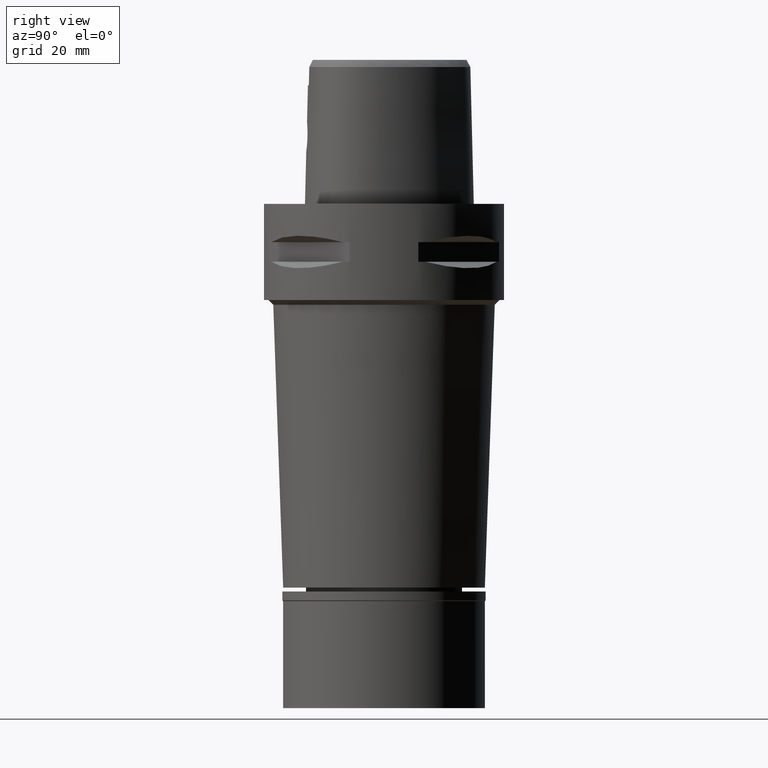
[diagram: clean part render]
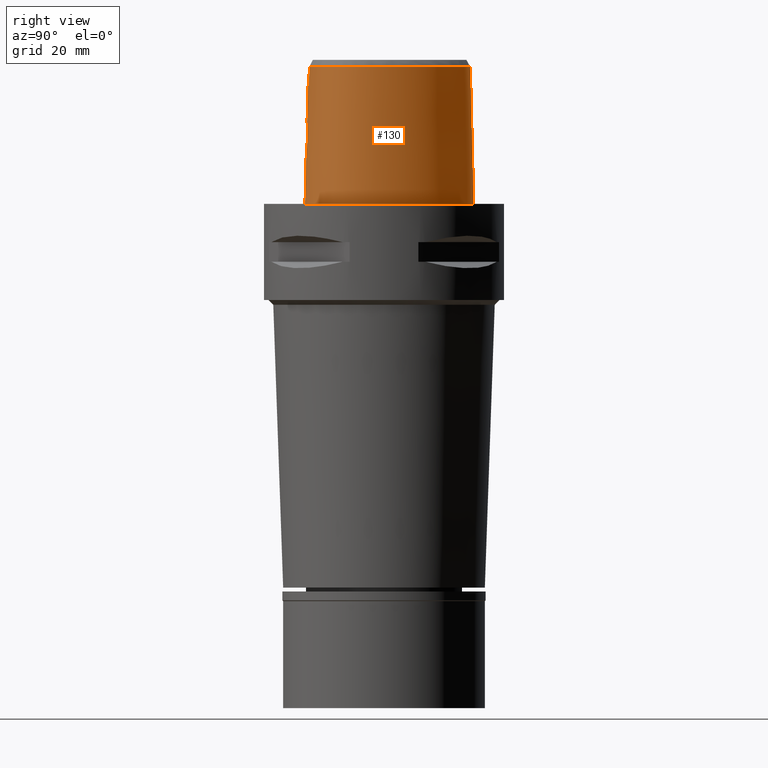
[diagram: same view with one face highlighted and labeled with its STEP entity id]
A machine part, right view. The second image highlights one B-rep face of the part: STEP entity #130.
In plain terms, the highlighted face is a freeform B-spline surface patch.
Its self-contained STEP definition (entity closure, byte-faithful):
#6 = VERTEX_POINT ( 'NONE', #270 ) ;
#11 = CARTESIAN_POINT ( 'NONE',  ( -0.5443412186381000328, 18.19851704362000078, 19.20396169952999799 ) ) ;
#12 = EDGE_CURVE ( 'NONE', #2570, #1781, #4143, .T. ) ;
#15 = CARTESIAN_POINT ( 'NONE',  ( -1.079551361447999902, -16.20136643792000086, 9.316773497791999148 ) ) ;
#49 = CARTESIAN_POINT ( 'NONE',  ( 2.030224829794000080E-07, -15.83752876601000281, 24.70000006102999990 ) ) ;
#54 = CARTESIAN_POINT ( 'NONE',  ( 7.976721801725998873, 15.84201698622999999, -0.5704147039463999258 ) ) ;
#77 = CARTESIAN_POINT ( 'NONE',  ( 0.3842297570381691396, -16.17878268541348064, 10.96777226348872958 ) ) ;
#116 = ORIENTED_EDGE ( 'NONE', *, *, #2062, .F. ) ;
#130 = ADVANCED_FACE ( 'NONE', ( #3039 ), #3271, .T. ) ;
#136 = VECTOR ( 'NONE', #3525, 1000.000000000000227 ) ;
#157 = CARTESIAN_POINT ( 'NONE',  ( -2.152758532514000202E-12, -16.18126839358999902, 10.94999999999999929 ) ) ;
#199 = CARTESIAN_POINT ( 'NONE',  ( 2.417729193041619151, -16.04731727844056266, 12.13798983179893654 ) ) ;
#205 = CARTESIAN_POINT ( 'NONE',  ( 2.030224829794000080E-07, -15.83752876601000281, 24.70000006102999990 ) ) ;
#207 = CARTESIAN_POINT ( 'NONE',  ( 13.36241662740000002, -12.29868531782999952, 9.316773497791999148 ) ) ;
#211 = CARTESIAN_POINT ( 'NONE',  ( 16.51672828905733681, 3.703437514886214643, -1.744312156005825912E-06 ) ) ;
#226 = CARTESIAN_POINT ( 'NONE',  ( 1.805376232587378116, -16.10834772480010813, 11.53923680359976878 ) ) ;
#237 = CARTESIAN_POINT ( 'NONE',  ( 15.05961623169000063, -9.784614130622999895, 29.09114990127000056 ) ) ;
#253 = CARTESIAN_POINT ( 'NONE',  ( 2.141618861871738222, -16.07744231414373814, 11.82835874812550792 ) ) ;
#265 = CARTESIAN_POINT ( 'NONE',  ( 17.08644817322000264, -5.387673897032000170, 19.20396169952999799 ) ) ;
#270 = CARTESIAN_POINT ( 'NONE',  ( -3.094719018046000398E-11, 17.98202997909999823, 28.52071728569000086 ) ) ;
#279 = CARTESIAN_POINT ( 'NONE',  ( 2.638828814086501495, -16.01860464026841413, 12.46732066277610507 ) ) ;
#290 = CARTESIAN_POINT ( 'NONE',  ( 17.22987929833000109, -3.272349403466999984, 19.20396169952999799 ) ) ;
#295 = CARTESIAN_POINT ( 'NONE',  ( 11.46563511374381328, 12.45218752828597530, -1.744312156005825912E-06 ) ) ;
#307 = CARTESIAN_POINT ( 'NONE',  ( 3.050149896193000476, -15.93316336324772386, 14.18941404704232312 ) ) ;
#316 = ORIENTED_EDGE ( 'NONE', *, *, #1524, .T. ) ;
#317 = CARTESIAN_POINT ( 'NONE',  ( 1.286803361170999915, -15.75925581158000099, 29.09114990127000056 ) ) ;
#362 = CARTESIAN_POINT ( 'NONE',  ( 4.522582257845999543, 17.29581182443000031, 19.20396169952999799 ) ) ;
#374 = CARTESIAN_POINT ( 'NONE',  ( 1.737183591012293693, -15.98828192606207743, 16.50739953107601821 ) ) ;
#392 = CARTESIAN_POINT ( 'NONE',  ( -3.094719018046000398E-11, 17.98202997909999823, 28.52071728569000086 ) ) ;
#420 = CARTESIAN_POINT ( 'NONE',  ( 1.531589067142498983, -15.99732691922906724, 16.63945844436470622 ) ) ;
#428 = CARTESIAN_POINT ( 'NONE',  ( 0.4511781748773999734, 17.98656543598000113, 29.09114990127000056 ) ) ;
#559 = CARTESIAN_POINT ( 'NONE',  ( 16.20602475747607940, -9.356552756219091549, -1.744312156005825912E-06 ) ) ;
#569 = CARTESIAN_POINT ( 'NONE',  ( 2.836520581861567081, -15.93251973351802242, 15.12113420123081298 ) ) ;
#578 = CARTESIAN_POINT ( 'NONE',  ( 13.50690096184690425, -12.48264651881767051, -1.744312156005825912E-06 ) ) ;
#590 = CARTESIAN_POINT ( 'NONE',  ( 3.044506884776515321, -15.94333381584075582, 13.81108558313461110 ) ) ;
#599 = CARTESIAN_POINT ( 'NONE',  ( 13.20908634200000087, -12.10346122271000091, 19.20396169952999799 ) ) ;
#603 = CARTESIAN_POINT ( 'NONE',  ( 0.6801907889749732039, 18.69500004360072154, -1.744312156005825912E-06 ) ) ;
#618 = CARTESIAN_POINT ( 'NONE',  ( 2.114644142901446422, -16.08015782783983383, 11.80200641014713270 ) ) ;
#628 = CARTESIAN_POINT ( 'NONE',  ( 15.25987605237999922, -9.930205345215998847, 19.20396169952999799 ) ) ;
#633 = B_SPLINE_CURVE_WITH_KNOTS ( 'NONE', 3,
 ( #49, #4168, #4429, #1788 ),
 .UNSPECIFIED., .F., .F.,
 ( 4, 4 ),
 ( 0.0000000000000000000, 1.000000000000000000 ),
 .UNSPECIFIED. ) ;
#645 = CARTESIAN_POINT ( 'NONE',  ( 2.899217746531571382, -15.97873758491098783, 13.02871175161756589 ) ) ;
#655 = CARTESIAN_POINT ( 'NONE',  ( 11.57144729095000102, -13.50085883975000023, 9.316773497791999148 ) ) ;
#658 = CARTESIAN_POINT ( 'NONE',  ( 17.71143739935840600, -3.269218749715581129, -1.744312156005825912E-06 ) ) ;
#668 = CARTESIAN_POINT ( 'NONE',  ( 2.681016418395044454, -15.93974068711152547, 15.46783011061541302 ) ) ;
#678 = CARTESIAN_POINT ( 'NONE',  ( 16.70311415928999921, -7.028822871693999552, 19.20396169952999799 ) ) ;
#710 = CARTESIAN_POINT ( 'NONE',  ( 16.53021708589000127, 3.708305584540000144, -0.5704147039463999258 ) ) ;
#719 = CARTESIAN_POINT ( 'NONE',  ( 1.893775678554745490, 17.84807068955549525, 28.52071728562184205 ) ) ;
#735 = CARTESIAN_POINT ( 'NONE',  ( 16.85489147434659074, -5.354527548487455491, 28.52071728562184205 ) ) ;
#756 = CARTESIAN_POINT ( 'NONE',  ( 15.84228676733617114, 3.460033425848965560, 28.52071728562184205 ) ) ;
#774 = CARTESIAN_POINT ( 'NONE',  ( 4.628819261275999963, 17.52182795194999798, 9.316773497791999148 ) ) ;
#781 = CARTESIAN_POINT ( 'NONE',  ( 2.030224829794000080E-07, -15.83752876601000281, 24.70000006102999990 ) ) ;
#786 = CARTESIAN_POINT ( 'NONE',  ( 0.0000000000000000000, -16.02877864023999877, 17.05000000000000071 ) ) ;
#796 = CARTESIAN_POINT ( 'NONE',  ( -0.5743166383234999950, 18.69191973845999755, -0.5704147039463999258 ) ) ;
#837 = CARTESIAN_POINT ( 'NONE',  ( 0.9209982704662519337, -16.16262558226604540, 11.09193420934339436 ) ) ;
#932 = CARTESIAN_POINT ( 'NONE',  ( 2.907704111751937770, -15.93016185020670505, 14.92213459652817775 ) ) ;
#957 = CARTESIAN_POINT ( 'NONE',  ( 1.078575942914911989, -16.15565394761469875, 11.14687127074764916 ) ) ;
#964 = CARTESIAN_POINT ( 'NONE',  ( 13.05575605661000083, -11.90823712759999964, 29.09114990127000056 ) ) ;
#978 = CARTESIAN_POINT ( 'NONE',  ( 2.130834279645530849, -16.07853149005607563, 11.81777582520600411 ) ) ;
#988 = CARTESIAN_POINT ( 'NONE',  ( 5.053620743890999911, -16.16974068498999983, -0.5704147039463999258 ) ) ;
#993 = CARTESIAN_POINT ( 'NONE',  ( 7.243243713393999948E-11, 18.69499999997999851, 1.586138627847999922E-13 ) ) ;
#1005 = CARTESIAN_POINT ( 'NONE',  ( 2.320231428406521079, -15.95909571851455588, 15.98050410814317424 ) ) ;
#1014 = CARTESIAN_POINT ( 'NONE',  ( 11.32630894423000001, -13.06981816289999898, 29.09114990127000056 ) ) ;
#1032 = CARTESIAN_POINT ( 'NONE',  ( 2.459696765391574225, -15.95161770387217004, 15.80683248070965163 ) ) ;
#1042 = CARTESIAN_POINT ( 'NONE',  ( 8.697311531141000529, -14.35163113926999934, 29.09114990127000056 ) ) ;
#1067 = CARTESIAN_POINT ( 'NONE',  ( 16.22974812217000107, -8.250337651438000464, 19.20396169952999799 ) ) ;
#1071 = CARTESIAN_POINT ( 'NONE',  ( 3.235096591086000117, -15.64751801257999908, 24.70000006080999810 ) ) ;
#1087 = ORIENTED_EDGE ( 'NONE', *, *, #4488, .T. ) ;
#1112 = CARTESIAN_POINT ( 'NONE',  ( 0.4640361003791000361, 18.23425880941999822, 19.20396169952999799 ) ) ;
#1292 = CARTESIAN_POINT ( 'NONE',  ( 2.824468722466921378, -15.93300016794371388, 15.15105085638172078 ) ) ;
#1298 = VECTOR ( 'NONE', #3899, 1000.000000000000114 ) ;
#1318 = CARTESIAN_POINT ( 'NONE',  ( 2.852909278454516251, -15.93189406616819781, 15.07915126970514486 ) ) ;
#1329 = CARTESIAN_POINT ( 'NONE',  ( 1.321318946931000049, -16.50155084632999802, -0.5704147039463999258 ) ) ;
#1334 = CARTESIAN_POINT ( 'NONE',  ( 2.040572366645008184, 18.55015629294168988, -1.744312156005825912E-06 ) ) ;
#1345 = CARTESIAN_POINT ( 'NONE',  ( 3.048883421515427461, -15.94046337244652278, 13.90502257973829181 ) ) ;
#1354 = CARTESIAN_POINT ( 'NONE',  ( 17.57791639733000011, -5.458025465929000397, -0.5704147039463999258 ) ) ;
#1358 = CARTESIAN_POINT ( 'NONE',  ( 14.78833383575404170, -11.28232913167233242, -1.744312156005825912E-06 ) ) ;
#1369 = CARTESIAN_POINT ( 'NONE',  ( 2.806282367902104280, -15.99380854387472084, 12.80500890572250405 ) ) ;
#1375 = ORIENTED_EDGE ( 'NONE', *, *, #12, .F. ) ;
#1379 = CARTESIAN_POINT ( 'NONE',  ( 15.46013587307000137, -10.07579655980999966, 9.316773497791999148 ) ) ;
#1395 = CARTESIAN_POINT ( 'NONE',  ( 2.709953204667776117, -16.00846021379442874, 12.59958595632848066 ) ) ;
#1405 = CARTESIAN_POINT ( 'NONE',  ( 8.951632340989998937, -15.05250171786000024, -0.5704147039463999258 ) ) ;
#1414 = CARTESIAN_POINT ( 'NONE',  ( 15.07117004567579244, -9.793013887526695882, 28.52071728562184205 ) ) ;
#1430 = CARTESIAN_POINT ( 'NONE',  ( 16.00353252256000047, -8.149703168763000605, 29.09114990127000056 ) ) ;
#1434 = CARTESIAN_POINT ( 'NONE',  ( 3.168920890822999770, -15.55911073834000113, 28.52071374672999582 ) ) ;
#1437 = CARTESIAN_POINT ( 'NONE',  ( 16.99625257117529742, -3.273868232427070257, 28.52071728562184205 ) ) ;
#1457 = CARTESIAN_POINT ( 'NONE',  ( -0.5593289284807999584, 18.44521839104000094, 9.316773497791999148 ) ) ;
#1487 = CARTESIAN_POINT ( 'NONE',  ( 11.33338046474027649, -13.08225241901684655, 28.52071728562184205 ) ) ;
#1516 = CARTESIAN_POINT ( 'NONE',  ( 1.217867162102865608, -16.00861105600192857, 16.79681041045230216 ) ) ;
#1524 = EDGE_CURVE ( 'NONE', #3747, #4379, #2402, .T. ) ;
#1555 = CARTESIAN_POINT ( 'NONE',  ( 1.890839650941000150, 17.83402852859999754, 29.09114990127000056 ) ) ;
#1562 = CARTESIAN_POINT ( 'NONE',  ( 2.169052010910560657, -15.77399788591196028, 24.70000016056456005 ) ) ;
#1651 = CARTESIAN_POINT ( 'NONE',  ( -3.094719018046000398E-11, 17.98202997909999823, 28.52071728569000086 ) ) ;
#1660 = EDGE_CURVE ( 'NONE', #4774, #4041, #633, .T. ) ;
#1698 = CARTESIAN_POINT ( 'NONE',  ( 1.466707760578695563, -16.13401281180648184, 11.31839107165520630 ) ) ;
#1709 = CARTESIAN_POINT ( 'NONE',  ( 14.39249255236000025, 8.309508948786000104, -0.5704147039463999258 ) ) ;
#1725 = CARTESIAN_POINT ( 'NONE',  ( 2.290593162243965697, -16.06186194956454116, 11.98364703425937172 ) ) ;
#1735 = CARTESIAN_POINT ( 'NONE',  ( 4.922186775354999710, -15.43572506549999979, 29.09114990127000056 ) ) ;
#1749 = CARTESIAN_POINT ( 'NONE',  ( 1.158353828547319386, -16.15167258786864579, 11.17852165137631992 ) ) ;
#1761 = CARTESIAN_POINT ( 'NONE',  ( 16.84071406117000436, -5.352498112583000456, 29.09114990127000056 ) ) ;
#1765 = CARTESIAN_POINT ( 'NONE',  ( 3.213444788215948034, -15.61774735051721308, 25.97357128944999971 ) ) ;
#1775 = CARTESIAN_POINT ( 'NONE',  ( 2.478737183293503676, -16.03986208745135400, 12.22013516387799825 ) ) ;
#1781 = VERTEX_POINT ( 'NONE', #3447 ) ;
#1785 = CARTESIAN_POINT ( 'NONE',  ( 17.26695536852000146, -0.2694874702483000539, 9.316773497791999148 ) ) ;
#1788 = CARTESIAN_POINT ( 'NONE',  ( 0.0000000000000000000, -16.02877864023999877, 17.05000000000000071 ) ) ;
#1804 = CARTESIAN_POINT ( 'NONE',  ( 2.975249651912822646, -15.92914271478721666, 14.67846616982686925 ) ) ;
#1814 = CARTESIAN_POINT ( 'NONE',  ( 1.309813751677999960, -16.25411916807999901, 9.316773497791999148 ) ) ;
#1825 = CARTESIAN_POINT ( 'NONE',  ( 8.702202469522260841, -14.36510984286175052, 28.52071728562184205 ) ) ;
#1840 = CARTESIAN_POINT ( 'NONE',  ( 7.822764751713000564, 15.64591005822999925, 9.316773497791999148 ) ) ;
#1851 = B_SPLINE_CURVE_WITH_KNOTS ( 'NONE', 3,
 ( #2795, #2457, #3185, #3268, #4032, #578, #1358, #2161, #559, #3585, #2064, #3982, #658, #2085, #211, #3657, #295, #4295, #4374, #1334, #603, #993 ),
 .UNSPECIFIED., .F., .F.,
 ( 4, 1, 1, 1, 1, 1, 1, 1, 1, 1, 1, 1, 1, 1, 1, 1, 1, 1, 1, 4 ),
 ( 0.0000000000000000000, 0.08333333333350000094, 0.1666666666668000230, 0.2083333333333000081, 0.2499999999998999967, 0.2916666666666000163, 0.3124999999998999689, 0.3333333333331000015, 0.3541666666665000407, 0.3749999999997999933, 0.4166666666664000096, 0.4583333333330000259, 0.4999999999995999866, 0.5833333333328000192, 0.6666666666660999718, 0.7499999999993000044, 0.8333333333325000369, 0.9166666666657000695, 0.9583333333322999747, 1.000000000000000000 ),
 .UNSPECIFIED. ) ;
#1885 = CARTESIAN_POINT ( 'NONE',  ( 1.992618745709000105, 18.32080815622000003, 9.316773497791999148 ) ) ;
#1931 = CARTESIAN_POINT ( 'NONE',  ( 4.416345254416000010, 17.06979569690999909, 29.09114990127000056 ) ) ;
#1954 = CARTESIAN_POINT ( 'NONE',  ( 0.1898211197373668446, -16.18126839358999902, 10.94999999999999751 ) ) ;
#2062 = EDGE_CURVE ( 'NONE', #6, #2580, #3917, .T. ) ;
#2064 = CARTESIAN_POINT ( 'NONE',  ( 17.16495055975975248, -7.165908215576941132, -1.744312156005825912E-06 ) ) ;
#2076 = CARTESIAN_POINT ( 'NONE',  ( 1.150837130458092217, -16.15205889506641412, 11.17544410961279056 ) ) ;
#2085 = CARTESIAN_POINT ( 'NONE',  ( 17.49754716624818229, -0.2285937423437257865, -1.744312156005825912E-06 ) ) ;
#2098 = ORIENTED_EDGE ( 'NONE', *, *, #2993, .T. ) ;
#2100 = CARTESIAN_POINT ( 'NONE',  ( 1.306758668661503142, -16.14399373876849353, 11.23972581488374622 ) ) ;
#2109 = CARTESIAN_POINT ( 'NONE',  ( 15.66039569375999818, -10.22138777439999835, -0.5704147039463999258 ) ) ;
#2124 = CARTESIAN_POINT ( 'NONE',  ( 2.821425036078518467, -15.93312409536605578, 15.15848376097718031 ) ) ;
#2134 = CARTESIAN_POINT ( 'NONE',  ( 16.21839714805999932, -9.363695959274000558, -0.5704147039463999258 ) ) ;
#2148 = CARTESIAN_POINT ( 'NONE',  ( 2.520317714005605225, -15.94834054842958793, 15.72060082174885132 ) ) ;
#2158 = CARTESIAN_POINT ( 'NONE',  ( 5.009809421045999578, -15.92506881183000367, 9.316773497791999148 ) ) ;
#2161 = CARTESIAN_POINT ( 'NONE',  ( 15.64884227789647220, -10.21298830693598703, -1.744312156005825912E-06 ) ) ;
#2174 = CARTESIAN_POINT ( 'NONE',  ( 2.180887052763814893, -15.96648089881372279, 16.13220278528723028 ) ) ;
#2184 = CARTESIAN_POINT ( 'NONE',  ( 17.33218228527999827, -5.422849681481000772, 9.316773497791999148 ) ) ;
#2202 = CARTESIAN_POINT ( 'NONE',  ( 1.354452607727719693, -16.00396228356807526, 16.73322745257438982 ) ) ;
#2212 = CARTESIAN_POINT ( 'NONE',  ( 11.69401646429999886, -13.71637917817999863, -0.5704147039463999258 ) ) ;
#2239 = CARTESIAN_POINT ( 'NONE',  ( 14.26907046692379666, -10.79012245165790773, 28.52071728562184205 ) ) ;
#2244 = CARTESIAN_POINT ( 'NONE',  ( 0.3724840145390407309, -16.02877864023999877, 17.04999999999999361 ) ) ;
#2257 = CARTESIAN_POINT ( 'NONE',  ( -1.089046662696999901, -16.44835921930999945, -0.5704147039463999258 ) ) ;
#2260 = CARTESIAN_POINT ( 'NONE',  ( 10.91764517733190054, 11.98972036053827317, 28.52071728562184205 ) ) ;
#2275 = CARTESIAN_POINT ( 'NONE',  ( 10.90668502824000008, 11.98047072149999970, 29.09114990127000056 ) ) ;
#2329 = CARTESIAN_POINT ( 'NONE',  ( 1.084489111476635514, -15.83754148653806659, 24.70000016056456005 ) ) ;
#2402 = LINE ( 'NONE', #4776, #1298 ) ;
#2447 = CARTESIAN_POINT ( 'NONE',  ( 1.719191830015878608, -16.11523926597523726, 11.47872671523162325 ) ) ;
#2457 = CARTESIAN_POINT ( 'NONE',  ( 1.683697725103081133, -16.45500004360071244, -1.744312156005826124E-06 ) ) ;
#2468 = CARTESIAN_POINT ( 'NONE',  ( 3.014162081768898105, -15.95399573205361854, 13.52323755265707206 ) ) ;
#2475 = CARTESIAN_POINT ( 'NONE',  ( 16.94089129437000096, -7.099401458173999480, 9.316773497791999148 ) ) ;
#2490 = CARTESIAN_POINT ( 'NONE',  ( 1.120763508486769089, -16.15358090583465867, 11.16333240776580382 ) ) ;
#2503 = CARTESIAN_POINT ( 'NONE',  ( 8.782085134423999406, -14.58525466546999994, 19.20396169952999799 ) ) ;
#2521 = CARTESIAN_POINT ( 'NONE',  ( 2.744096643845215233, -16.00346064512505961, 12.66698413764604325 ) ) ;
#2531 = CARTESIAN_POINT ( 'NONE',  ( 16.98194841734999727, -3.273961225054000224, 29.09114990127000056 ) ) ;
#2545 = CARTESIAN_POINT ( 'NONE',  ( 2.196663950529426312, -15.96564993910013364, 16.11602529263612027 ) ) ;
#2556 = CARTESIAN_POINT ( 'NONE',  ( 14.61870767401999949, -11.12154149494999977, 9.316773497791999148 ) ) ;
#2564 = CARTESIAN_POINT ( 'NONE',  ( 0.6295828025428342745, 17.98202997637813638, 28.52071728562184205 ) ) ;
#2570 = VERTEX_POINT ( 'NONE', #4759 ) ;
#2580 = VERTEX_POINT ( 'NONE', #3591 ) ;
#2582 = CARTESIAN_POINT ( 'NONE',  ( 0.0000000000000000000, -16.02877864023999877, 17.05000000000000071 ) ) ;
#2585 = CARTESIAN_POINT ( 'NONE',  ( -0.7138086207778999714, -15.96808629085999875, 19.20396169952999799 ) ) ;
#2610 = CARTESIAN_POINT ( 'NONE',  ( 0.4768940258807999877, 18.48195218285000152, 9.316773497791999148 ) ) ;
#2614 = ORIENTED_EDGE ( 'NONE', *, *, #4745, .T. ) ;
#2627 = CARTESIAN_POINT ( 'NONE',  ( 7.514850651687999594, 15.25369620224000045, 29.09114990127000056 ) ) ;
#2648 = CARTESIAN_POINT ( 'NONE',  ( -0.3829342213886000046, 18.70352949268999865, -0.5704147039463999258 ) ) ;
#2656 = CARTESIAN_POINT ( 'NONE',  ( 5.902447799197189759, -15.16907841529151568, 28.52071728562184560 ) ) ;
#2695 = CARTESIAN_POINT ( 'NONE',  ( -0.3730031645486999725, 18.45651544036000047, 9.316773497791999148 ) ) ;
#2713 = CARTESIAN_POINT ( 'NONE',  ( 0.6770584128772033639, -16.17132556088388995, 11.02443681068311676 ) ) ;
#2795 = CARTESIAN_POINT ( 'NONE',  ( -1.728596458601000357E-11, -16.45500000000000185, 1.597240858093999809E-13 ) ) ;
#2809 = CARTESIAN_POINT ( 'NONE',  ( 2.164021906619612690, -15.96736812113674198, 16.14931344321803408 ) ) ;
#2834 = CARTESIAN_POINT ( 'NONE',  ( 1.898958778535287051, -15.98067541706731731, 16.38724889510307392 ) ) ;
#2843 = CARTESIAN_POINT ( 'NONE',  ( 11.28662493285999879, 12.30111480623000020, 9.316773497791999148 ) ) ;
#2856 = CARTESIAN_POINT ( 'NONE',  ( 2.883981873338816282, -15.93080840504316598, 14.99485968243841150 ) ) ;
#2864 = CARTESIAN_POINT ( 'NONE',  ( 15.78948629622000155, -9.116064162785999514, 19.20396169952999799 ) ) ;
#2884 = CARTESIAN_POINT ( 'NONE',  ( 3.049961347112721377, -15.93921296701097923, 13.94964838113523165 ) ) ;
#2894 = CARTESIAN_POINT ( 'NONE',  ( 8.866858737707000060, -14.81887819166000142, 9.316773497791999148 ) ) ;
#2912 = CARTESIAN_POINT ( 'NONE',  ( 2.232748692361829157, -15.96374470980125082, 16.07819212816551513 ) ) ;
#2924 = CARTESIAN_POINT ( 'NONE',  ( 13.96223222989999968, 8.061115390864999952, 19.20396169952999799 ) ) ;
#2949 = CARTESIAN_POINT ( 'NONE',  ( 17.51166498559999951, -0.2260900528419000077, -0.5704147039463999258 ) ) ;
#2981 = CARTESIAN_POINT ( 'NONE',  ( 16.01658383235130856, -8.155509186612100336, 28.52071728562184205 ) ) ;
#2992 = CARTESIAN_POINT ( 'NONE',  ( 11.09665498054999944, 12.14079276386000039, 19.20396169952999799 ) ) ;
#2993 = EDGE_CURVE ( 'NONE', #4379, #2580, #1851, .T. ) ;
#2999 = CARTESIAN_POINT ( 'NONE',  ( 3.168920890822999770, -15.55911073834000113, 28.52071374672999582 ) ) ;
#3012 = CARTESIAN_POINT ( 'NONE',  ( 1.941729198325000016, 18.07741834241000234, 19.20396169952999799 ) ) ;
#3015 = CARTESIAN_POINT ( 'NONE',  ( -0.7264497208332001410, -16.46229666010999892, -0.5704147039463999258 ) ) ;
#3039 = FACE_OUTER_BOUND ( 'NONE', #4802, .T. ) ;
#3058 = CARTESIAN_POINT ( 'NONE',  ( -0.3630721077087999960, 18.20950138802999874, 19.20396169952999799 ) ) ;
#3151 = CARTESIAN_POINT ( 'NONE',  ( -2.152758532514000202E-12, -16.18126839358999902, 10.94999999999999929 ) ) ;
#3185 = CARTESIAN_POINT ( 'NONE',  ( 5.051093175302274751, -16.15562504316535808, -1.744312156005825912E-06 ) ) ;
#3202 = CARTESIAN_POINT ( 'NONE',  ( 2.957688824804170391, -15.96752846870872666, 13.22897551199208266 ) ) ;
#3212 = CARTESIAN_POINT ( 'NONE',  ( 17.72574106029000163, -3.269125760292999949, -0.5704147039463999258 ) ) ;
#3231 = CARTESIAN_POINT ( 'NONE',  ( 2.076784380858851531, -16.08390063340872445, 11.76594178764124621 ) ) ;
#3240 = CARTESIAN_POINT ( 'NONE',  ( 16.45596372177000077, -8.350972134114000411, 9.316773497791999148 ) ) ;
#3257 = CARTESIAN_POINT ( 'NONE',  ( 2.796681338616599621, -15.99533385695102439, 12.78273984513034378 ) ) ;
#3265 = CARTESIAN_POINT ( 'NONE',  ( -0.7074880707502999577, -15.72098110624000178, 29.09114990127000056 ) ) ;
#3268 = CARTESIAN_POINT ( 'NONE',  ( 8.946741571141094695, -15.03902347871851930, -1.744312156005825912E-06 ) ) ;
#3271 = B_SPLINE_SURFACE_WITH_KNOTS ( 'NONE', 3, 3, ( 
 ( #2257, #15, #3756, #4551 ),
 ( #3015, #4525, #2585, #3265 ),
 ( #1329, #1814, #3607, #317 ),
 ( #988, #2158, #3323, #1735 ),
 ( #1405, #2894, #2503, #1042 ),
 ( #2212, #655, #4831, #1014 ),
 ( #3980, #207, #599, #964 ),
 ( #4370, #2556, #4749, #4006 ),
 ( #2109, #1379, #628, #237 ),
 ( #2134, #4399, #2864, #4775 ),
 ( #4053, #3240, #1067, #1430 ),
 ( #3631, #2475, #678, #3653 ),
 ( #1354, #2184, #265, #1761 ),
 ( #3212, #4029, #290, #2531 ),
 ( #2949, #1785, #3290, #4085 ),
 ( #710, #4724, #4455, #4344 ),
 ( #1709, #4805, #2924, #4428 ),
 ( #3680, #2843, #2992, #2275 ),
 ( #54, #1840, #4500, #2627 ),
 ( #4173, #774, #362, #1931 ),
 ( #3730, #1885, #3012, #1555 ),
 ( #4150, #2610, #1112, #428 ),
 ( #2648, #2695, #3058, #4194 ),
 ( #796, #1457, #11, #4128 ) ),
 .UNSPECIFIED., .F., .F., .F.,
 ( 4, 1, 1, 1, 1, 1, 1, 1, 1, 1, 1, 1, 1, 1, 1, 1, 1, 1, 1, 1, 1, 4 ),
 ( 4, 4 ),
 ( -0.01796851319148999940, 0.0000000000000000000, 0.08333333333350000094, 0.1666666666668000230, 0.2083333333333000081, 0.2499999999998999967, 0.2916666666666000163, 0.3124999999998999689, 0.3333333333331000015, 0.3541666666665000407, 0.3749999999997999933, 0.4166666666664000096, 0.4583333333330000259, 0.4999999999995999866, 0.5833333333328000192, 0.6666666666660999718, 0.7499999999993000044, 0.8333333333325000369, 0.9166666666657000695, 0.9583333333322999747, 1.000000000000000000, 1.011711214084999977 ),
 ( 8.885596043673000739E-10, 0.9999999546833999720 ),
 .UNSPECIFIED. ) ;
#3281 = CARTESIAN_POINT ( 'NONE',  ( 2.262444582314413033, -15.96216938760132464, 16.04565077979857790 ) ) ;
#3290 = CARTESIAN_POINT ( 'NONE',  ( 17.02224575144000340, -0.3128848876547999924, 19.20396169952999799 ) ) ;
#3299 = CARTESIAN_POINT ( 'NONE',  ( 7.523733068098453103, 15.26501041873948239, 28.52071728562184205 ) ) ;
#3310 = CARTESIAN_POINT ( 'NONE',  ( 2.147962331140050196, -16.07679769526338021, 11.83463701146478719 ) ) ;
#3323 = CARTESIAN_POINT ( 'NONE',  ( 4.965998098199999156, -15.68039693865999951, 19.20396169952999799 ) ) ;
#3327 = CARTESIAN_POINT ( 'NONE',  ( 3.191384142201736829, -15.58827398948734633, 27.24714251809000132 ) ) ;
#3337 = CARTESIAN_POINT ( 'NONE',  ( 1.399412083726095490, -16.00233608542867714, 16.71046994217811843 ) ) ;
#3400 = CARTESIAN_POINT ( 'NONE',  ( 16.47905536661744463, -6.962316254603313936, 28.52071728562184205 ) ) ;
#3447 = CARTESIAN_POINT ( 'NONE',  ( 3.168920890822999770, -15.55911073834000113, 28.52071374672999582 ) ) ;
#3525 = DIRECTION ( 'NONE',  ( 3.623588411843884826E-12, 0.02499051285796925065, -0.9996876883642689116 ) ) ;
#3571 = CARTESIAN_POINT ( 'NONE',  ( 1.138812104615412935, -16.15267061231297774, 11.17057442770736664 ) ) ;
#3585 = CARTESIAN_POINT ( 'NONE',  ( 16.66912846131180004, -8.445800799004141268, -1.744312156005825912E-06 ) ) ;
#3591 = CARTESIAN_POINT ( 'NONE',  ( 7.243243713393999948E-11, 18.69499999997999851, 1.586138627847999922E-13 ) ) ;
#3599 = CARTESIAN_POINT ( 'NONE',  ( 2.223227574825688890, -16.06911398227925147, 11.90960399256264957 ) ) ;
#3607 = CARTESIAN_POINT ( 'NONE',  ( 1.298308556424000004, -16.00668748983000000, 19.20396169952999799 ) ) ;
#3622 = CARTESIAN_POINT ( 'NONE',  ( 2.829313881745447734, -15.93280562740808470, 15.13908937170597291 ) ) ;
#3631 = CARTESIAN_POINT ( 'NONE',  ( 17.17866842945000272, -7.169980044653000206, -0.5704147039463999258 ) ) ;
#3644 = CARTESIAN_POINT ( 'NONE',  ( 0.9939297242885032357, -16.15959612542590662, 11.11569146158375077 ) ) ;
#3653 = CARTESIAN_POINT ( 'NONE',  ( 16.46533702422000189, -6.958244285215000602, 29.09114990127000056 ) ) ;
#3657 = CARTESIAN_POINT ( 'NONE',  ( 14.38008123485800027, 8.302343771910768666, -1.744312156005825912E-06 ) ) ;
#3670 = CARTESIAN_POINT ( 'NONE',  ( 2.170299400654050359, -15.96703807926083307, 16.14297866672072601 ) ) ;
#3680 = CARTESIAN_POINT ( 'NONE',  ( 11.47659488516999993, 12.46143684859999823, -0.5704147039463999258 ) ) ;
#3729 = B_SPLINE_CURVE_WITH_KNOTS ( 'NONE', 3,
 ( #3151, #1954, #77, #2713, #4211, #837, #3644, #957, #2490, #3571, #2076, #1749, #2100, #1698, #2447, #226, #3996, #3970, #4360, #3231, #618, #978, #253, #3310, #3599, #1725, #199, #1775, #4021, #279, #1395, #2521, #4765, #3257, #1369, #645, #3202, #2468, #4740, #3946, #590, #1345, #2884, #307, #4044, #1804, #4794, #932, #2856, #1318, #569, #3622, #1292, #2124, #4419, #668, #2148, #1032, #4391, #1005, #3281, #2912, #2545, #2174, #3670, #2809, #4713, #4310, #2834, #4335, #4864, #374, #3742, #420, #3337, #2202, #3764, #1516, #4098, #2244, #786 ),
 .UNSPECIFIED., .F., .F.,
 ( 4, 2, 2, 1, 1, 1, 2, 2, 2, 2, 2, 1, 1, 2, 2, 2, 2, 2, 1, 2, 2, 2, 2, 2, 2, 2, 2, 1, 1, 1, 2, 2, 2, 2, 2, 1, 1, 2, 2, 2, 2, 2, 2, 2, 2, 4 ),
 ( 0.0000000000000000000, 0.06249999999999365785, 0.09374999999999047984, 0.1093749999999888700, 0.1171874999999880929, 0.1210937499999875655, 0.1230468749999872879, 0.1249999999999870243, 0.1874999999999834854, 0.2187499999999817368, 0.2343749999999807376, 0.2421874999999802935, 0.2460937499999800715, 0.2480468749999800715, 0.2499999999999800715, 0.2812499999999800715, 0.3124999999999800715, 0.3437499999999800715, 0.3593749999999800715, 0.3671874999999797939, 0.3749999999999794609, 0.4374999999999764633, 0.4687499999999749645, 0.4843749999999745204, 0.4999999999999740208, 0.5624999999999715783, 0.5937499999999700240, 0.6093749999999695799, 0.6171874999999695799, 0.6210937499999693578, 0.6230468749999693578, 0.6249999999999692468, 0.6874999999999720224, 0.7187499999999731326, 0.7343749999999737987, 0.7421874999999744649, 0.7460937499999747979, 0.7480468749999746869, 0.7499999999999745759, 0.7812499999999784617, 0.7968749999999800160, 0.8124999999999814593, 0.8437499999999846789, 0.8593749999999861222, 0.8749999999999873435, 1.000000000000000000 ),
 .UNSPECIFIED. ) ;
#3730 = CARTESIAN_POINT ( 'NONE',  ( 2.043508293092999750, 18.56419797003000127, -0.5704147039463999258 ) ) ;
#3742 = CARTESIAN_POINT ( 'NONE',  ( 1.616099766049513997, -15.99381337938742043, 16.58846643699800083 ) ) ;
#3747 = VERTEX_POINT ( 'NONE', #157 ) ;
#3756 = CARTESIAN_POINT ( 'NONE',  ( -1.070056060199000125, -15.95437365651999961, 19.20396169952999799 ) ) ;
#3764 = CARTESIAN_POINT ( 'NONE',  ( 1.262794661676007513, -16.00712763199256727, 16.77676499123157683 ) ) ;
#3840 = ORIENTED_EDGE ( 'NONE', *, *, #4253, .F. ) ;
#3899 = DIRECTION ( 'NONE',  ( -1.381596326677966557E-12, -0.02499051295371941192, -0.9996876883618752707 ) ) ;
#3917 = LINE ( 'NONE', #1651, #136 ) ;
#3946 = CARTESIAN_POINT ( 'NONE',  ( 3.041209740384549498, -15.94490574327321575, 13.76368115324908459 ) ) ;
#3970 = CARTESIAN_POINT ( 'NONE',  ( 1.979050802157140243, -16.09313883417927116, 11.67852903116019725 ) ) ;
#3980 = CARTESIAN_POINT ( 'NONE',  ( 13.51574691279999918, -12.49390941294000079, -0.5704147039463999258 ) ) ;
#3982 = CARTESIAN_POINT ( 'NONE',  ( 17.56373947267987745, -5.455996099955068956, -1.744312156005825912E-06 ) ) ;
#3996 = CARTESIAN_POINT ( 'NONE',  ( 1.935527014327847573, -16.09705987419036788, 11.64218429700401636 ) ) ;
#4005 = ORIENTED_EDGE ( 'NONE', *, *, #1660, .T. ) ;
#4006 = CARTESIAN_POINT ( 'NONE',  ( 14.25868486755000042, -10.78027800336000119, 29.09114990127000056 ) ) ;
#4021 = CARTESIAN_POINT ( 'NONE',  ( 2.587629427706296781, -16.02556131009806961, 12.38252332209277640 ) ) ;
#4029 = CARTESIAN_POINT ( 'NONE',  ( 17.47781017931000136, -3.270737581880000189, 9.316773497791999148 ) ) ;
#4032 = CARTESIAN_POINT ( 'NONE',  ( 11.68694518746131905, -13.70394535052376739, -1.744312156005825912E-06 ) ) ;
#4041 = VERTEX_POINT ( 'NONE', #2582 ) ;
#4044 = CARTESIAN_POINT ( 'NONE',  ( 3.032153927794988491, -15.93034332000362063, 14.38503233290865246 ) ) ;
#4053 = CARTESIAN_POINT ( 'NONE',  ( 16.68217932138000137, -8.451606616789000270, -0.5704147039463999258 ) ) ;
#4065 = CARTESIAN_POINT ( 'NONE',  ( 13.75951381385693217, 7.944084035686936218, 28.52071728562184205 ) ) ;
#4085 = CARTESIAN_POINT ( 'NONE',  ( 16.77753613435999824, -0.3562823050612000109, 29.09114990127000056 ) ) ;
#4092 = CARTESIAN_POINT ( 'NONE',  ( 15.58740368722746084, -8.999391713747412425, 28.52071728562184205 ) ) ;
#4098 = CARTESIAN_POINT ( 'NONE',  ( 0.7741482008191986619, -16.02257322970520903, 16.98085959781949938 ) ) ;
#4115 = CARTESIAN_POINT ( 'NONE',  ( 4.422474504765915526, 17.08283549833475590, 28.52071728562184205 ) ) ;
#4128 = CARTESIAN_POINT ( 'NONE',  ( -0.5293535087954999163, 17.95181569621000151, 29.09114990127000056 ) ) ;
#4143 = B_SPLINE_CURVE_WITH_KNOTS ( 'NONE', 3,
 ( #1071, #1765, #3327, #1434 ),
 .UNSPECIFIED., .F., .F.,
 ( 4, 4 ),
 ( 0.0000000000000000000, 1.000000000000000000 ),
 .UNSPECIFIED. ) ;
#4150 = CARTESIAN_POINT ( 'NONE',  ( 0.4897519513824999948, 18.72964555628999861, -0.5704147039463999258 ) ) ;
#4168 = CARTESIAN_POINT ( 'NONE',  ( 6.782391356601994781E-08, -15.90128720080261004, 22.15000025259049110 ) ) ;
#4173 = CARTESIAN_POINT ( 'NONE',  ( 4.735056264706000384, 17.74784407947000275, -0.5704147039463999258 ) ) ;
#4194 = CARTESIAN_POINT ( 'NONE',  ( -0.3531410508688999639, 17.96248733568999967, 29.09114990127000056 ) ) ;
#4211 = CARTESIAN_POINT ( 'NONE',  ( 0.7748558813810018098, -16.16821842566323397, 11.04831638025931007 ) ) ;
#4228 = CARTESIAN_POINT ( 'NONE',  ( -1.728596458601000357E-11, -16.45500000000000185, 1.597240858093999809E-13 ) ) ;
#4253 = EDGE_CURVE ( 'NONE', #3747, #4041, #3729, .T. ) ;
#4295 = CARTESIAN_POINT ( 'NONE',  ( 7.967839691386575218, 15.83070315959670893, -1.744312156005825912E-06 ) ) ;
#4310 = CARTESIAN_POINT ( 'NONE',  ( 2.014841840659067795, -15.97504399877427339, 16.29192479722134479 ) ) ;
#4335 = CARTESIAN_POINT ( 'NONE',  ( 1.859549321997236992, -15.98255794229956273, 16.41807320997656205 ) ) ;
#4344 = CARTESIAN_POINT ( 'NONE',  ( 15.82879750568999810, 3.455165188445000091, 29.09114990127000056 ) ) ;
#4353 = B_SPLINE_CURVE_WITH_KNOTS ( 'NONE', 3,
 ( #392, #2564, #719, #4115, #3299, #2260, #4065, #756, #4815, #1437, #735, #3400, #2981, #4092, #1414, #2239, #4463, #1487, #1825, #2656, #4527, #2999 ),
 .UNSPECIFIED., .F., .F.,
 ( 4, 1, 1, 1, 1, 1, 1, 1, 1, 1, 1, 1, 1, 1, 1, 1, 1, 1, 1, 4 ),
 ( 0.0000000000000000000, 0.04404152929334076427, 0.08808305858551870871, 0.1761661171698748196, 0.2642491757542309583, 0.3523322343385870692, 0.4404152929230487623, 0.5284983515074048732, 0.5725398807995829564, 0.6165814100917609286, 0.6606229393839390118, 0.6826437040300280534, 0.7046644686762227883, 0.7266852333222061366, 0.7487059979682950672, 0.7927475272605788437, 0.8367890565527569269, 0.8808305858448292058, 0.9689136444292909545, 1.000000000000000000 ),
 .UNSPECIFIED. ) ;
#4360 = CARTESIAN_POINT ( 'NONE',  ( 2.044225401073498816, -16.08701963945086533, 11.73626748625702731 ) ) ;
#4365 = B_SPLINE_CURVE_WITH_KNOTS ( 'NONE', 3,
 ( #4695, #1562, #2329, #205 ),
 .UNSPECIFIED., .F., .F.,
 ( 4, 4 ),
 ( 0.0000000000000000000, 1.000000000000000000 ),
 .UNSPECIFIED. ) ;
#4370 = CARTESIAN_POINT ( 'NONE',  ( 14.79871907726000124, -11.29217324075000128, -0.5704147039463999258 ) ) ;
#4374 = CARTESIAN_POINT ( 'NONE',  ( 4.728927225558295255, 17.73480472737178459, -1.744312156005825912E-06 ) ) ;
#4379 = VERTEX_POINT ( 'NONE', #4228 ) ;
#4391 = CARTESIAN_POINT ( 'NONE',  ( 2.356615372638850125, -15.95714923954085585, 15.93698914121854315 ) ) ;
#4399 = CARTESIAN_POINT ( 'NONE',  ( 16.00394172214000221, -9.239880061030001812, 9.316773497791999148 ) ) ;
#4419 = CARTESIAN_POINT ( 'NONE',  ( 2.759961640973260355, -15.93564958624568639, 15.30749493561489061 ) ) ;
#4428 = CARTESIAN_POINT ( 'NONE',  ( 13.74710206867000117, 7.936918611904999921, 29.09114990127000056 ) ) ;
#4429 = CARTESIAN_POINT ( 'NONE',  ( 6.797913096749396072E-08, -15.96503292052207179, 19.60000012629526367 ) ) ;
#4455 = CARTESIAN_POINT ( 'NONE',  ( 16.06260403242000123, 3.539545320476999990, 19.20396169952999799 ) ) ;
#4463 = CARTESIAN_POINT ( 'NONE',  ( 13.06460231238753522, -11.91950040983343229, 28.52071728562184205 ) ) ;
#4488 = EDGE_CURVE ( 'NONE', #6, #1781, #4353, .T. ) ;
#4500 = CARTESIAN_POINT ( 'NONE',  ( 7.668807701700999679, 15.44980313024000118, 19.20396169952999799 ) ) ;
#4525 = CARTESIAN_POINT ( 'NONE',  ( -0.7201291708056000163, -16.21519147549000195, 9.316773497791999148 ) ) ;
#4527 = CARTESIAN_POINT ( 'NONE',  ( 3.738627708318665199, -15.49270856215128589, 28.52071728562183850 ) ) ;
#4551 = CARTESIAN_POINT ( 'NONE',  ( -1.060560758948999815, -15.70738087512999925, 29.09114990127000056 ) ) ;
#4695 = CARTESIAN_POINT ( 'NONE',  ( 3.235096591086000117, -15.64751801257999908, 24.70000006080999810 ) ) ;
#4713 = CARTESIAN_POINT ( 'NONE',  ( 2.088968113521981529, -15.97131126311717608, 16.22457167555463897 ) ) ;
#4724 = CARTESIAN_POINT ( 'NONE',  ( 16.29641055915000081, 3.623925452508999889, 9.316773497791999148 ) ) ;
#4740 = CARTESIAN_POINT ( 'NONE',  ( 3.027798455715707160, -15.95003164277662400, 13.62032956274716966 ) ) ;
#4745 = EDGE_CURVE ( 'NONE', #2570, #4774, #4365, .T. ) ;
#4749 = CARTESIAN_POINT ( 'NONE',  ( 14.43869627079000040, -10.95090974915000004, 19.20396169952999799 ) ) ;
#4759 = CARTESIAN_POINT ( 'NONE',  ( 3.235096591086000117, -15.64751801257999908, 24.70000006080999810 ) ) ;
#4765 = CARTESIAN_POINT ( 'NONE',  ( 2.775961287962938506, -15.99857004330711518, 12.73620107527709244 ) ) ;
#4774 = VERTEX_POINT ( 'NONE', #781 ) ;
#4775 = CARTESIAN_POINT ( 'NONE',  ( 15.57503087029999911, -8.992248264542999081, 29.09114990127000056 ) ) ;
#4776 = CARTESIAN_POINT ( 'NONE',  ( -2.152758532514000202E-12, -16.18126839358999902, 10.94999999999999929 ) ) ;
#4794 = CARTESIAN_POINT ( 'NONE',  ( 2.951306861662620573, -15.92924742299003960, 14.77626636585411646 ) ) ;
#4802 = EDGE_LOOP ( 'NONE', ( #116, #1087, #1375, #2614, #4005, #3840, #316, #2098 ) ) ;
#4805 = CARTESIAN_POINT ( 'NONE',  ( 14.17736239112999996, 8.185312169824999984, 9.316773497791999148 ) ) ;
#4815 = CARTESIAN_POINT ( 'NONE',  ( 16.79165444020155817, -0.3537785292840632811, 28.52071728562184205 ) ) ;
#4831 = CARTESIAN_POINT ( 'NONE',  ( 11.44887811758999874, -13.28533850133000094, 19.20396169952999799 ) ) ;
#4864 = CARTESIAN_POINT ( 'NONE',  ( 1.779262221764184693, -15.98633376436653464, 16.47774649146145620 ) ) ;